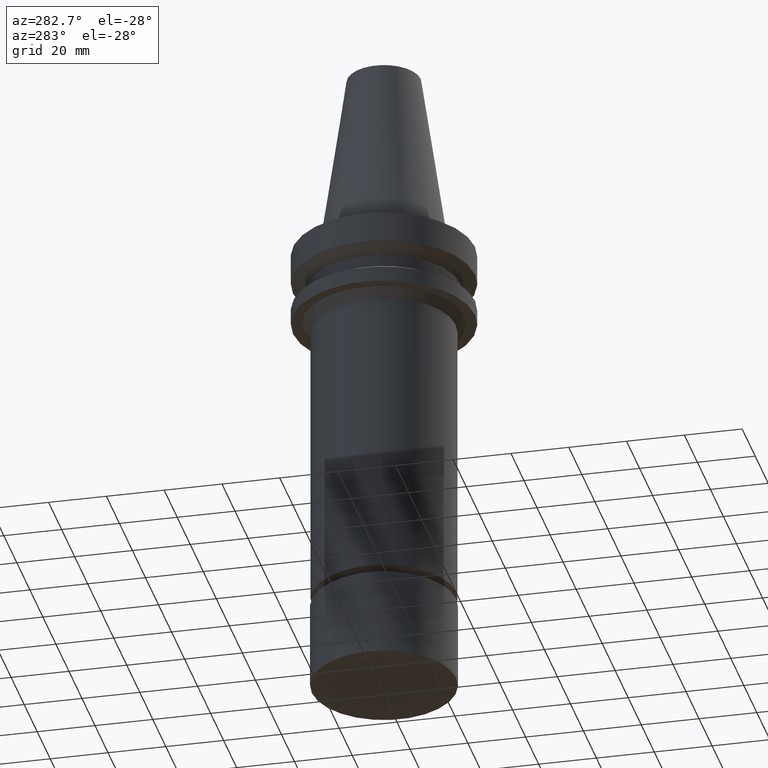
[diagram: clean part render]
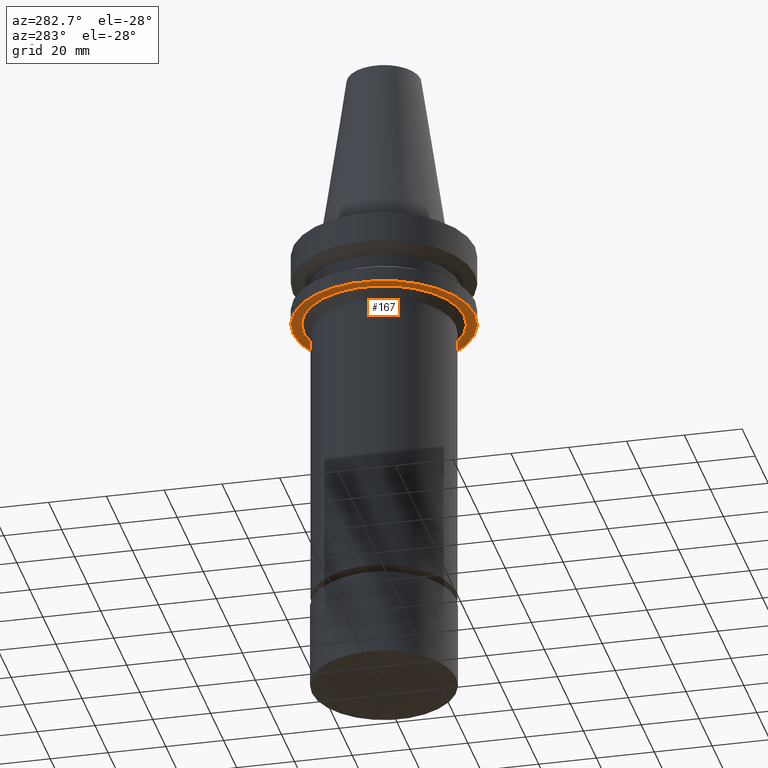
[diagram: same view with one face highlighted and labeled with its STEP entity id]
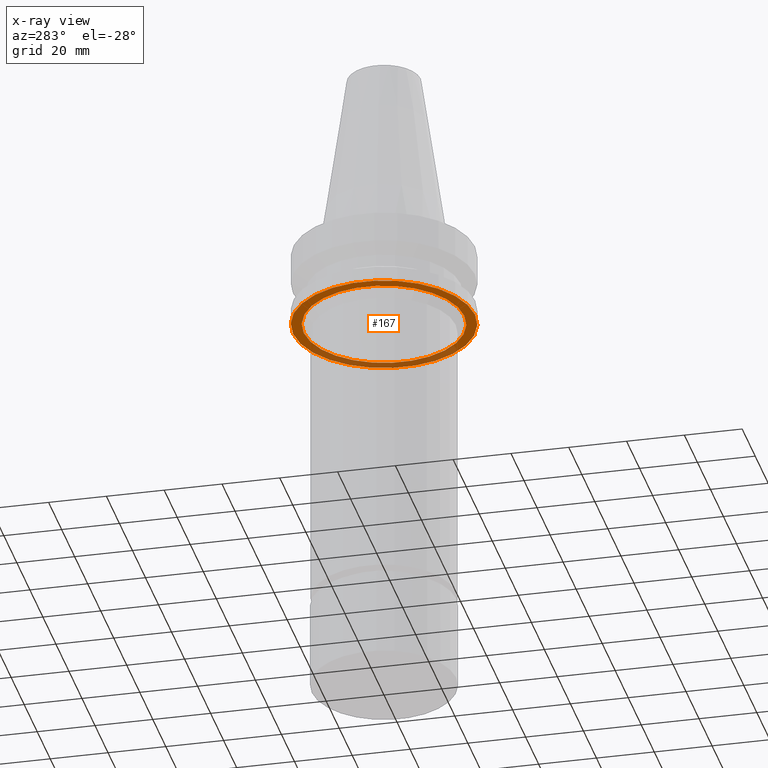
[diagram: x-ray of the same camera — body ghosted, the highlighted face saturated]
A machine part, auxiliary view. The second image highlights one B-rep face of the part: STEP entity #167.
The next image is the same camera in x-ray: the body ghosted, the highlighted face saturated — about 30% of this face is hidden behind the body in this view.
In plain terms, the highlighted conical surface has half-angle 89.998 deg.
Its self-contained STEP definition (entity closure, byte-faithful):
#113=EDGE_CURVE('Unnamed[1]',#259,#259,#260,.T.);
#123=EDGE_CURVE('Unnamed[1]',#273,#273,#274,.T.);
#167=ADVANCED_FACE('Unnamed[1]',(#340,#341),#342,.F.);
#259=VERTEX_POINT('',#450);
#260=CIRCLE('',#451,27.8000000024396);
#273=VERTEX_POINT('',#467);
#274=CIRCLE('',#468,31.5000000000003);
#340=FACE_BOUND('',#550,.T.);
#341=FACE_BOUND('',#551,.T.);
#342=CONICAL_SURFACE('',#552,29.65000000122,1.57075486116235);
#450=CARTESIAN_POINT('',(1.65327343275269E-015,27.8000000024397,-27.0000041465632));
#451=AXIS2_PLACEMENT_3D('',#646,#647,#648);
#467=CARTESIAN_POINT('',(1.65328282719222E-015,31.5000000000004,-27.0001575694036));
#468=AXIS2_PLACEMENT_3D('',#659,#660,#661);
#550=EDGE_LOOP('',(#732));
#551=EDGE_LOOP('',(#733));
#552=AXIS2_PLACEMENT_3D('',#734,#735,#736);
#646=CARTESIAN_POINT('',(1.6532734327527E-015,7.78981304648508E-014,-27.0000041465632));
#647=DIRECTION('',(6.12323399573677E-017,7.81354581145528E-018,-1.0));
#648=DIRECTION('',(-5.30559442416852E-033,1.0,7.81354581145528E-018));
#659=CARTESIAN_POINT('',(1.65328282719222E-015,7.78981316636272E-014,-27.0001575694036));
#660=DIRECTION('',(6.12323399573677E-017,7.81354581145529E-018,-1.0));
#661=DIRECTION('',(-5.30559442416852E-033,1.0,7.81354581145529E-018));
#732=ORIENTED_EDGE('',*,*,#113,.F.);
#733=ORIENTED_EDGE('',*,*,#123,.T.);
#734=CARTESIAN_POINT('',(1.65327812997246E-015,7.7898131064239E-014,-27.0000808579834));
#735=DIRECTION('',(6.12323399573676E-017,7.81354581145528E-018,-1.0));
#736=DIRECTION('',(-5.30559442416852E-033,1.0,7.81354581145529E-018));